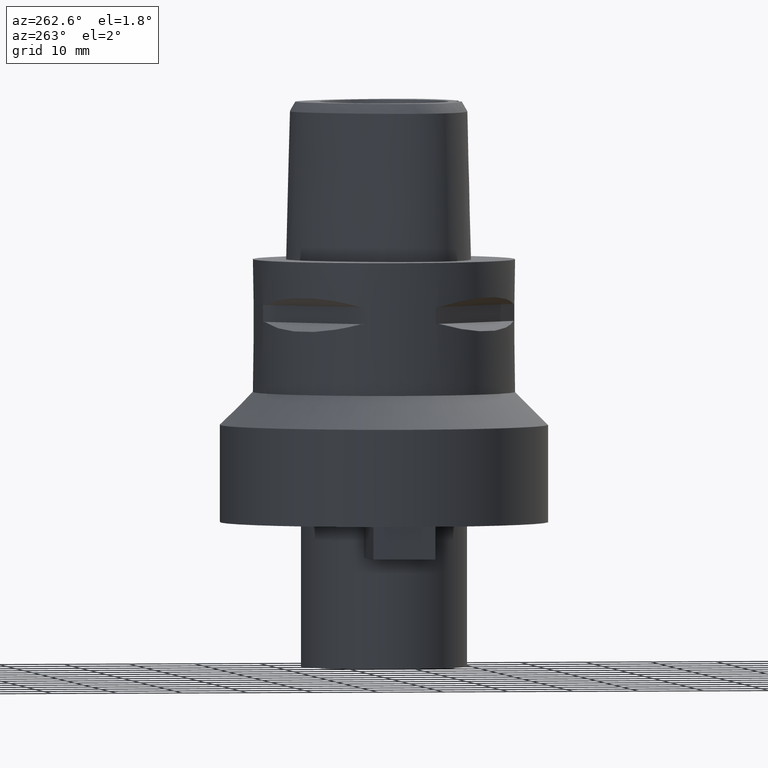
[diagram: clean part render]
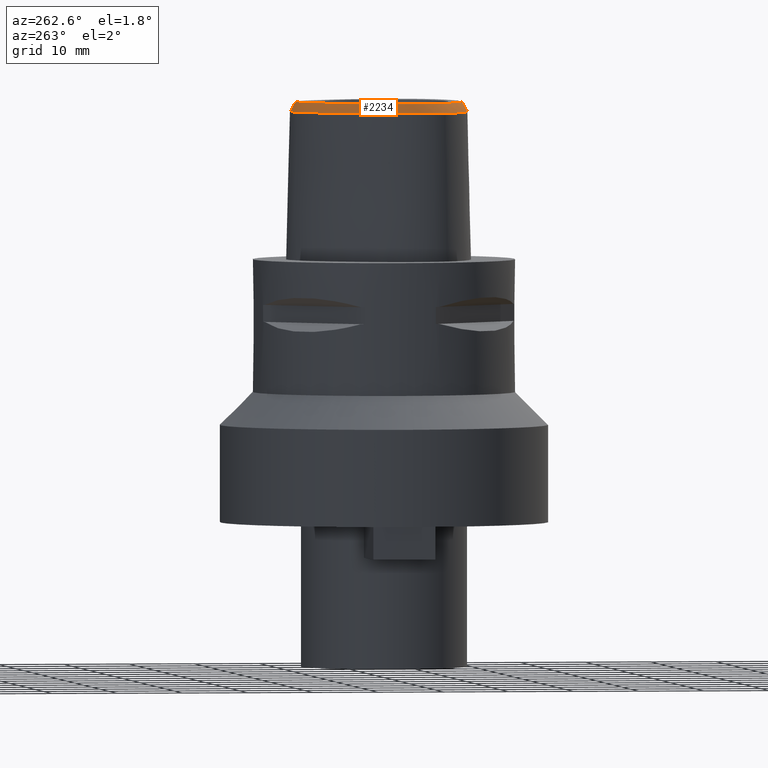
[diagram: same view with one face highlighted and labeled with its STEP entity id]
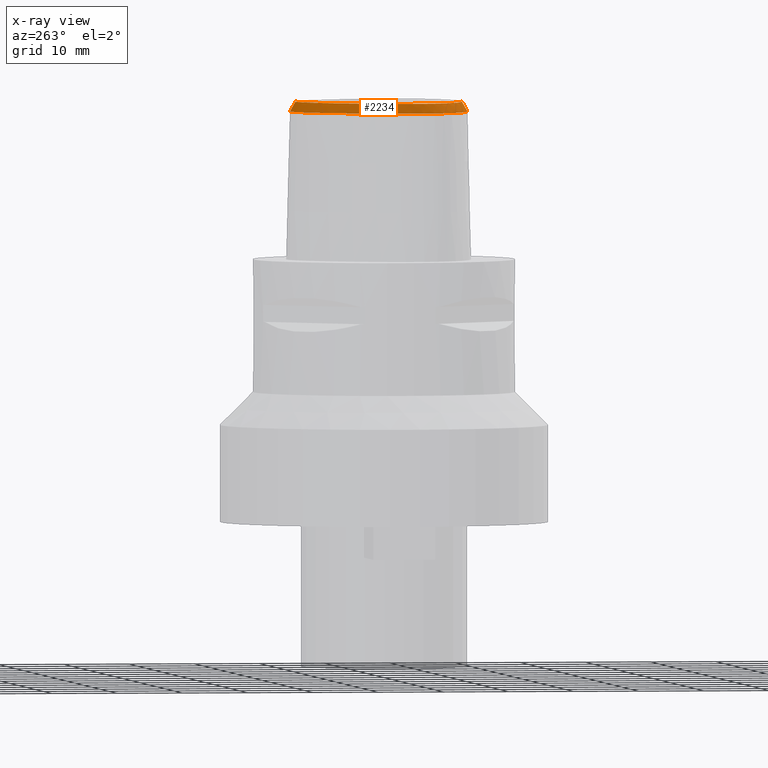
[diagram: x-ray of the same camera — body ghosted, the highlighted face saturated]
A machine part, auxiliary view. The second image highlights one B-rep face of the part: STEP entity #2234.
The next image is the same camera in x-ray: the body ghosted, the highlighted face saturated — about 0% of this face is hidden behind the body in this view.
In plain terms, the highlighted face is a freeform B-spline surface patch.
Its self-contained STEP definition (entity closure, byte-faithful):
#26=CARTESIAN_POINT('',(-1.908902231479E0,-1.168567671432E1,2.4E1));
#27=CARTESIAN_POINT('',(-2.481724898554E0,-1.163401497850E1,2.4E1));
#28=CARTESIAN_POINT('',(-3.563361432309E0,-1.148973373339E1,2.4E1));
#29=CARTESIAN_POINT('',(-5.024706861232E0,-1.117278693636E1,2.4E1));
#30=CARTESIAN_POINT('',(-6.243272168656E0,-1.080728708031E1,2.4E1));
#31=CARTESIAN_POINT('',(-7.319395105249E0,-1.039526650595E1,2.4E1));
#32=CARTESIAN_POINT('',(-8.285078050921E0,-9.935318322499E0,2.4E1));
#33=CARTESIAN_POINT('',(-9.161328010911E0,-9.423035478429E0,2.4E1));
#34=CARTESIAN_POINT('',(-9.937552062665E0,-8.865463343726E0,2.4E1));
#35=CARTESIAN_POINT('',(-1.058501989729E1,-8.294060897819E0,2.4E1));
#36=CARTESIAN_POINT('',(-1.111598541466E1,-7.719071980642E0,2.4E1));
#37=CARTESIAN_POINT('',(-1.155013481688E1,-7.136626898014E0,2.4E1));
#38=CARTESIAN_POINT('',(-1.190104948876E1,-6.541657191145E0,2.4E1));
#39=CARTESIAN_POINT('',(-1.219579276287E1,-5.890910487840E0,2.4E1));
#40=CARTESIAN_POINT('',(-1.243897749032E1,-5.156619030808E0,2.4E1));
#41=CARTESIAN_POINT('',(-1.262095507866E1,-4.332997119745E0,2.4E1));
#42=CARTESIAN_POINT('',(-1.273103982553E1,-3.394262357398E0,2.4E1));
#43=CARTESIAN_POINT('',(-1.275232195280E1,-2.390471409660E0,2.4E1));
#44=CARTESIAN_POINT('',(-1.268376726551E1,-1.333218450825E0,2.4E1));
#45=CARTESIAN_POINT('',(-1.252102351046E1,-2.124122209759E-1,2.4E1));
#46=CARTESIAN_POINT('',(-1.224891324576E1,1.008416730884E0,2.4E1));
#47=CARTESIAN_POINT('',(-1.182601865500E1,2.396995030019E0,2.4E1));
#48=CARTESIAN_POINT('',(-1.122010556652E1,3.924745049124E0,2.4E1));
#49=CARTESIAN_POINT('',(-1.046210194415E1,5.455501514842E0,2.4E1));
#50=CARTESIAN_POINT('',(-9.578413697509E0,6.929632194631E0,2.4E1));
#51=CARTESIAN_POINT('',(-8.591757783297E0,8.308502818076E0,2.4E1));
#52=CARTESIAN_POINT('',(-7.573891749405E0,9.507650002554E0,2.4E1));
#53=CARTESIAN_POINT('',(-6.617393513022E0,1.046802998448E1,2.4E1));
#54=CARTESIAN_POINT('',(-5.719285637390E0,1.124478964380E1,2.4E1));
#55=CARTESIAN_POINT('',(-4.831714846112E0,1.190101360841E1,2.4E1));
#56=CARTESIAN_POINT('',(-3.946866797568E0,1.244872863983E1,2.4E1));
#57=CARTESIAN_POINT('',(-3.069843000196E0,1.288827131871E1,2.4E1));
#58=CARTESIAN_POINT('',(-2.227204958453E0,1.321193373268E1,2.4E1));
#59=CARTESIAN_POINT('',(-1.444584259257E0,1.342446973037E1,2.4E1));
#60=CARTESIAN_POINT('',(-7.087016664697E-1,1.354503063331E1,2.4E1));
#61=CARTESIAN_POINT('',(-2.328645429444E-1,1.357127880781E1,2.4E1));
#62=CARTESIAN_POINT('',(-1.335434154492E-10,1.357127880781E1,2.4E1));
#175=CARTESIAN_POINT('',(-1.908902231479E0,-1.168567671432E1,2.4E1));
#176=CARTESIAN_POINT('',(-1.997651483425E0,-1.175887895280E1,2.385563464270E1));
#177=CARTESIAN_POINT('',(-2.164153643173E0,-1.191348214528E1,2.355238070448E1));
#178=CARTESIAN_POINT('',(-2.380673178971E0,-1.216434310603E1,2.306621151731E1));
#179=CARTESIAN_POINT('',(-2.509408871138E0,-1.235195819386E1,2.270732106211E1));
#180=CARTESIAN_POINT('',(-2.568703252653E0,-1.245023756080E1,2.252071717950E1));
#185=CARTESIAN_POINT('',(-2.568703252653E0,-1.245023756080E1,2.252071717950E1));
#186=CARTESIAN_POINT('',(-3.140767362064E0,-1.238285874835E1,2.252069809700E1));
#187=CARTESIAN_POINT('',(-4.231432350381E0,-1.220749118666E1,2.252075047915E1));
#188=CARTESIAN_POINT('',(-5.680401477738E0,-1.185356079189E1,2.252068346086E1));
#189=CARTESIAN_POINT('',(-6.912706729050E0,-1.145002392145E1,2.252072846215E1));
#190=CARTESIAN_POINT('',(-8.014444282615E0,-1.099423288898E1,2.252071904811E1));
#191=CARTESIAN_POINT('',(-9.018405144946E0,-1.048012557420E1,2.252071402547E1));
#192=CARTESIAN_POINT('',(-9.929151451424E0,-9.906337477002E0,2.252072194140E1));
#193=CARTESIAN_POINT('',(-1.070776393210E1,-9.304676928897E0,2.252071466012E1));
#194=CARTESIAN_POINT('',(-1.135814414685E1,-8.692024244349E0,2.252072649171E1));
#195=CARTESIAN_POINT('',(-1.190098337376E1,-8.066523440665E0,2.252071260322E1));
#196=CARTESIAN_POINT('',(-1.234667877880E1,-7.432105773747E0,2.252076625818E1));
#197=CARTESIAN_POINT('',(-1.271526241775E1,-6.769205394506E0,2.252072475515E1));
#198=CARTESIAN_POINT('',(-1.302516400355E1,-6.043193140644E0,2.252071273254E1));
#199=CARTESIAN_POINT('',(-1.327656964214E1,-5.234323751474E0,2.252071347282E1));
#200=CARTESIAN_POINT('',(-1.346054735624E1,-4.335879622322E0,2.252072965067E1));
#201=CARTESIAN_POINT('',(-1.356670738777E1,-3.325787118150E0,2.252071333962E1));
#202=CARTESIAN_POINT('',(-1.357833085045E1,-2.232102726738E0,2.252072310686E1));
#203=CARTESIAN_POINT('',(-1.349159664572E1,-1.088567970740E0,2.252070848754E1));
#204=CARTESIAN_POINT('',(-1.330380166341E1,1.120053897956E-1,2.252073059496E1));
#205=CARTESIAN_POINT('',(-1.300051046427E1,1.410194195177E0,2.252072244837E1));
#206=CARTESIAN_POINT('',(-1.252747872946E1,2.900839187196E0,2.252070273689E1));
#207=CARTESIAN_POINT('',(-1.187832536623E1,4.481041021115E0,2.252069888392E1));
#208=CARTESIAN_POINT('',(-1.108347172856E1,6.045259994258E0,2.252072375172E1));
#209=CARTESIAN_POINT('',(-1.016193108695E1,7.549741679123E0,2.252068647014E1));
#210=CARTESIAN_POINT('',(-9.144943296323E0,8.946575283709E0,2.252071673861E1));
#211=CARTESIAN_POINT('',(-8.081042420031E0,1.018103728568E1,2.252072151124E1));
#212=CARTESIAN_POINT('',(-7.077911845281E0,1.117209775440E1,2.252070220860E1));
#213=CARTESIAN_POINT('',(-6.128371495495E0,1.197957250549E1,2.252072281274E1));
#214=CARTESIAN_POINT('',(-5.175347433608E0,1.267004432638E1,2.252072151735E1));
#215=CARTESIAN_POINT('',(-4.221915802100E0,1.324476235602E1,2.252072283038E1));
#216=CARTESIAN_POINT('',(-3.286911294798E0,1.369826143421E1,2.252073193036E1));
#217=CARTESIAN_POINT('',(-2.395439664103E0,1.402886899447E1,2.252069729837E1));
#218=CARTESIAN_POINT('',(-1.555977357370E0,1.424902387042E1,2.252079950042E1));
#219=CARTESIAN_POINT('',(-7.552256815651E-1,1.437387551916E1,2.252057493327E1));
#220=CARTESIAN_POINT('',(-2.533298763088E-1,1.440001989798E1,2.252071729253E1));
#221=CARTESIAN_POINT('',(-6.596689358390E-11,1.440001989798E1,
2.252071729253E1));
#226=DIRECTION('',(-3.985384057881E-11,-4.887572544033E-1,8.724198222577E-1));
#227=VECTOR('',#226,1.695608776565E0);
#228=CARTESIAN_POINT('',(-6.596689358390E-11,1.440001989798E1,
2.252071729253E1));
#229=LINE('',#228,#227);
#233=CARTESIAN_POINT('',(-2.568703252653E0,-1.245023756080E1,2.252071717950E1));
#1583=CARTESIAN_POINT('',(-1.908902231482E0,-1.168567671432E1,2.4E1));
#1585=VERTEX_POINT('',#1583);
#1586=VERTEX_POINT('',#62);
#1595=VERTEX_POINT('',#233);
#1596=CARTESIAN_POINT('',(-6.596689358390E-11,1.440001989798E1,
2.252071729253E1));
#1597=VERTEX_POINT('',#1596);
#2022=CARTESIAN_POINT('',(3.581078725702E-1,1.349647680417E1,2.411666870662E1));
#2023=CARTESIAN_POINT('',(3.757309830335E-1,1.381580947910E1,2.354577192886E1));
#2024=CARTESIAN_POINT('',(3.933540934968E-1,1.413514215404E1,2.297487515110E1));
#2025=CARTESIAN_POINT('',(4.109772039601E-1,1.445447482897E1,2.240397837333E1));
#2026=CARTESIAN_POINT('',(2.357557754970E-1,1.350271631214E1,2.411666868116E1));
#2027=CARTESIAN_POINT('',(2.475572863642E-1,1.382238485502E1,2.354577202799E1));
#2028=CARTESIAN_POINT('',(2.593587972315E-1,1.414205339790E1,2.297487537482E1));
#2029=CARTESIAN_POINT('',(2.711603080987E-1,1.446172194078E1,2.240397872164E1));
#2030=CARTESIAN_POINT('',(-4.779440032513E-2,1.351037520856E1,
2.411666866182E1));
#2031=CARTESIAN_POINT('',(-5.008764217168E-2,1.383044048653E1,
2.354577210326E1));
#2032=CARTESIAN_POINT('',(-5.238088401823E-2,1.415050576449E1,
2.297487554470E1));
#2033=CARTESIAN_POINT('',(-5.467412586479E-2,1.447057104245E1,
2.240397898614E1));
#2034=CARTESIAN_POINT('',(-4.849559623984E-1,1.349350078594E1,
2.411666870442E1));
#2035=CARTESIAN_POINT('',(-5.097271500992E-1,1.381269195946E1,
2.354577193741E1));
#2036=CARTESIAN_POINT('',(-5.344983378001E-1,1.413188313297E1,
2.297487517040E1));
#2037=CARTESIAN_POINT('',(-5.592695255009E-1,1.445107430649E1,
2.240397840339E1));
#2038=CARTESIAN_POINT('',(-9.946093211746E-1,1.343499264982E1,
2.411666869477E1));
#2039=CARTESIAN_POINT('',(-1.043618904220E0,1.375135820478E1,2.354577197501E1));
#2040=CARTESIAN_POINT('',(-1.092628487266E0,1.406772375974E1,2.297487525525E1));
#2041=CARTESIAN_POINT('',(-1.141638070312E0,1.438408931470E1,2.240397853549E1));
#2042=CARTESIAN_POINT('',(-1.525334849366E0,1.333273741810E1,2.411666865725E1));
#2043=CARTESIAN_POINT('',(-1.597921691645E0,1.364452890841E1,2.354577212105E1));
#2044=CARTESIAN_POINT('',(-1.670508533923E0,1.395632039871E1,2.297487558485E1));
#2045=CARTESIAN_POINT('',(-1.743095376201E0,1.426811188902E1,2.240397904865E1));
#2046=CARTESIAN_POINT('',(-2.082859980546E0,1.318182135060E1,2.411666872787E1));
#2047=CARTESIAN_POINT('',(-2.178178529694E0,1.348741845194E1,2.354577184610E1));
#2048=CARTESIAN_POINT('',(-2.273497078842E0,1.379301555328E1,2.297487496433E1));
#2049=CARTESIAN_POINT('',(-2.368815627989E0,1.409861265462E1,2.240397808256E1));
#2050=CARTESIAN_POINT('',(-2.667875619337E0,1.297673699375E1,2.411666873765E1));
#2051=CARTESIAN_POINT('',(-2.784952726363E0,1.327466362704E1,2.354577180803E1));
#2052=CARTESIAN_POINT('',(-2.902029833388E0,1.357259026033E1,2.297487487841E1));
#2053=CARTESIAN_POINT('',(-3.019106940414E0,1.387051689362E1,2.240397794878E1));
#2054=CARTESIAN_POINT('',(-3.283863731176E0,1.271023960510E1,2.411666840597E1));
#2055=CARTESIAN_POINT('',(-3.421596290684E0,1.299918326477E1,2.354577309934E1));
#2056=CARTESIAN_POINT('',(-3.559328850193E0,1.328812692443E1,2.297487779270E1));
#2057=CARTESIAN_POINT('',(-3.697061409701E0,1.357707058410E1,2.240398248606E1));
#2058=CARTESIAN_POINT('',(-3.933077906095E0,1.237409782728E1,2.411666820474E1));
#2059=CARTESIAN_POINT('',(-4.090278104358E0,1.265291391265E1,2.354577388280E1));
#2060=CARTESIAN_POINT('',(-4.247478302621E0,1.293172999802E1,2.297487956086E1));
#2061=CARTESIAN_POINT('',(-4.404678500884E0,1.321054608339E1,2.240398523893E1));
#2062=CARTESIAN_POINT('',(-4.613637101655E0,1.196099420727E1,2.411666835024E1));
#2063=CARTESIAN_POINT('',(-4.789098446769E0,1.222868016422E1,2.354577331635E1));
#2064=CARTESIAN_POINT('',(-4.964559791882E0,1.249636612116E1,2.297487828245E1));
#2065=CARTESIAN_POINT('',(-5.140021136995E0,1.276405207811E1,2.240398324856E1));
#2066=CARTESIAN_POINT('',(-5.321303385500E0,1.146472655747E1,2.411666873177E1));
#2067=CARTESIAN_POINT('',(-5.513812114048E0,1.172041345222E1,2.354577183093E1));
#2068=CARTESIAN_POINT('',(-5.706320842595E0,1.197610034697E1,2.297487493009E1));
#2069=CARTESIAN_POINT('',(-5.898829571143E0,1.223178724172E1,2.240397802926E1));
#2070=CARTESIAN_POINT('',(-6.052325782228E0,1.087836155965E1,2.411666863713E1));
#2071=CARTESIAN_POINT('',(-6.260689431585E0,1.112128767721E1,2.354577219937E1));
#2072=CARTESIAN_POINT('',(-6.469053080941E0,1.136421379477E1,2.297487576161E1));
#2073=CARTESIAN_POINT('',(-6.677416730298E0,1.160713991234E1,2.240397932385E1));
#2074=CARTESIAN_POINT('',(-6.801921429846E0,1.019540233830E1,2.411666847636E1));
#2075=CARTESIAN_POINT('',(-7.024928269475E0,1.042494541494E1,2.354577282531E1));
#2076=CARTESIAN_POINT('',(-7.247935109104E0,1.065448849158E1,2.297487717426E1));
#2077=CARTESIAN_POINT('',(-7.470941948733E0,1.088403156822E1,2.240398152322E1));
#2078=CARTESIAN_POINT('',(-7.557966931656E0,9.416232968493E0,2.411666861162E1));
#2079=CARTESIAN_POINT('',(-7.794480149417E0,9.631823053226E0,2.354577229866E1));
#2080=CARTESIAN_POINT('',(-8.030993367178E0,9.847413137959E0,2.297487598570E1));
#2081=CARTESIAN_POINT('',(-8.267506584939E0,1.006300322269E1,2.240397967274E1));
#2082=CARTESIAN_POINT('',(-8.306355620398E0,8.545470547250E0,2.411666871118E1));
#2083=CARTESIAN_POINT('',(-8.555312624813E0,8.746553202737E0,2.354577191106E1));
#2084=CARTESIAN_POINT('',(-8.804269629229E0,8.947635858225E0,2.297487511094E1));
#2085=CARTESIAN_POINT('',(-9.053226633645E0,9.148718513713E0,2.240397831082E1));
#2086=CARTESIAN_POINT('',(-9.032863043621E0,7.590746009973E0,2.411666858330E1));
#2087=CARTESIAN_POINT('',(-9.293208657106E0,7.776839625658E0,2.354577240898E1));
#2088=CARTESIAN_POINT('',(-9.553554270592E0,7.962933241342E0,2.297487623466E1));
#2089=CARTESIAN_POINT('',(-9.813899884077E0,8.149026857027E0,2.240398006034E1));
#2090=CARTESIAN_POINT('',(-9.720916130270E0,6.566829519301E0,2.411666864035E1));
#2091=CARTESIAN_POINT('',(-9.991662816539E0,6.737434432088E0,2.354577218687E1));
#2092=CARTESIAN_POINT('',(-1.026240950281E1,6.908039344875E0,2.297487573340E1));
#2093=CARTESIAN_POINT('',(-1.053315618908E1,7.078644257663E0,2.240397927992E1));
#2094=CARTESIAN_POINT('',(-1.035393613330E1,5.494279334280E0,2.411666868877E1));
#2095=CARTESIAN_POINT('',(-1.063415838249E1,5.648827606883E0,2.354577199835E1));
#2096=CARTESIAN_POINT('',(-1.091438063168E1,5.803375879487E0,2.297487530793E1));
#2097=CARTESIAN_POINT('',(-1.119460288087E1,5.957924152090E0,2.240397861751E1));
#2098=CARTESIAN_POINT('',(-1.092049834829E1,4.391850546090E0,2.411666859997E1));
#2099=CARTESIAN_POINT('',(-1.120924013031E1,4.529829823997E0,2.354577234407E1));
#2100=CARTESIAN_POINT('',(-1.149798191233E1,4.667809101904E0,2.297487608816E1));
#2101=CARTESIAN_POINT('',(-1.178672369436E1,4.805788379810E0,2.240397983226E1));
#2102=CARTESIAN_POINT('',(-1.141086815551E1,3.282075242943E0,2.411666869131E1));
#2103=CARTESIAN_POINT('',(-1.170720192989E1,3.402901843428E0,2.354577198843E1));
#2104=CARTESIAN_POINT('',(-1.200353570428E1,3.523728443913E0,2.297487528555E1));
#2105=CARTESIAN_POINT('',(-1.229986947866E1,3.644555044398E0,2.240397858267E1));
#2106=CARTESIAN_POINT('',(-1.181821975903E1,2.189368678230E0,2.411666868409E1));
#2107=CARTESIAN_POINT('',(-1.212121246929E1,2.292381453544E0,2.354577201653E1));
#2108=CARTESIAN_POINT('',(-1.242420517956E1,2.395394228858E0,2.297487534897E1));
#2109=CARTESIAN_POINT('',(-1.272719788983E1,2.498407004172E0,2.240397868141E1));
#2110=CARTESIAN_POINT('',(-1.214196853916E1,1.130702738401E0,2.411666839813E1));
#2111=CARTESIAN_POINT('',(-1.245062692651E1,1.215263228482E0,2.354577312988E1));
#2112=CARTESIAN_POINT('',(-1.275928531387E1,1.299823718564E0,2.297487786163E1));
#2113=CARTESIAN_POINT('',(-1.306794370123E1,1.384384208645E0,2.240398259338E1));
#2114=CARTESIAN_POINT('',(-1.238452275884E1,1.205454593437E-1,
2.411666842173E1));
#2115=CARTESIAN_POINT('',(-1.269780682412E1,1.859611430030E-1,
2.354577303800E1));
#2116=CARTESIAN_POINT('',(-1.301109088941E1,2.513768266624E-1,
2.297487765426E1));
#2117=CARTESIAN_POINT('',(-1.332437495469E1,3.167925103218E-1,
2.240398227052E1));
#2118=CARTESIAN_POINT('',(-1.255051334329E1,-8.279871015946E-1,
2.411666869349E1));
#2119=CARTESIAN_POINT('',(-1.286730461232E1,-7.824209274586E-1,
2.354577197994E1));
#2120=CARTESIAN_POINT('',(-1.318409588135E1,-7.368547533226E-1,
2.297487526638E1));
#2121=CARTESIAN_POINT('',(-1.350088715038E1,-6.912885791866E-1,
2.240397855283E1));
#2122=CARTESIAN_POINT('',(-1.264741750878E1,-1.710924336645E0,
2.411666869794E1));
#2123=CARTESIAN_POINT('',(-1.296650247253E1,-1.685924153860E0,
2.354577196262E1));
#2124=CARTESIAN_POINT('',(-1.328558743629E1,-1.660923971075E0,
2.297487522730E1));
#2125=CARTESIAN_POINT('',(-1.360467240004E1,-1.635923788290E0,
2.240397849199E1));
#2126=CARTESIAN_POINT('',(-1.268321010689E1,-2.527439109727E0,
2.411666868853E1));
#2127=CARTESIAN_POINT('',(-1.300326240066E1,-2.523627812372E0,
2.354577199928E1));
#2128=CARTESIAN_POINT('',(-1.332331469442E1,-2.519816515018E0,
2.297487531002E1));
#2129=CARTESIAN_POINT('',(-1.364336698819E1,-2.516005217664E0,
2.240397862077E1));
#2130=CARTESIAN_POINT('',(-1.266561177742E1,-3.278041877418E0,
2.411666861212E1));
#2131=CARTESIAN_POINT('',(-1.298519453400E1,-3.296015148607E0,
2.354577229675E1));
#2132=CARTESIAN_POINT('',(-1.330477729057E1,-3.313988419796E0,
2.297487598137E1));
#2133=CARTESIAN_POINT('',(-1.362436004714E1,-3.331961690984E0,
2.240397966599E1));
#2134=CARTESIAN_POINT('',(-1.260189982064E1,-3.965839882758E0,
2.411666865877E1));
#2135=CARTESIAN_POINT('',(-1.291946443511E1,-4.006053858631E0,
2.354577211515E1));
#2136=CARTESIAN_POINT('',(-1.323702904958E1,-4.046267834505E0,
2.297487557153E1));
#2137=CARTESIAN_POINT('',(-1.355459366405E1,-4.086481810378E0,
2.240397902791E1));
#2138=CARTESIAN_POINT('',(-1.249859018239E1,-4.593989984533E0,
2.411666869994E1));
#2139=CARTESIAN_POINT('',(-1.281248007625E1,-4.656806001037E0,
2.354577195483E1));
#2140=CARTESIAN_POINT('',(-1.312636997011E1,-4.719622017540E0,
2.297487520971E1));
#2141=CARTESIAN_POINT('',(-1.344025986396E1,-4.782438034043E0,
2.240397846459E1));
#2142=CARTESIAN_POINT('',(-1.236088551288E1,-5.168458897594E0,
2.411666869126E1));
#2143=CARTESIAN_POINT('',(-1.266935866556E1,-5.254043273255E0,
2.354577198867E1));
#2144=CARTESIAN_POINT('',(-1.297783181825E1,-5.339627648916E0,
2.297487528608E1));
#2145=CARTESIAN_POINT('',(-1.328630497093E1,-5.425212024577E0,
2.240397858349E1));
#2146=CARTESIAN_POINT('',(-1.219312956934E1,-5.693990201811E0,
2.411666865392E1));
#2147=CARTESIAN_POINT('',(-1.249437426076E1,-5.802337452111E0,
2.354577213402E1));
#2148=CARTESIAN_POINT('',(-1.279561895218E1,-5.910684702410E0,
2.297487561413E1));
#2149=CARTESIAN_POINT('',(-1.309686364360E1,-6.019031952710E0,
2.240397909423E1));
#2150=CARTESIAN_POINT('',(-1.199789210422E1,-6.176946968106E0,
2.411666867856E1));
#2151=CARTESIAN_POINT('',(-1.229006833483E1,-6.307813215185E0,
2.354577203810E1));
#2152=CARTESIAN_POINT('',(-1.258224456543E1,-6.438679462264E0,
2.297487539765E1));
#2153=CARTESIAN_POINT('',(-1.287442079604E1,-6.569545709343E0,
2.240397875720E1));
#2154=CARTESIAN_POINT('',(-1.177845854927E1,-6.619447054760E0,
2.411666867726E1));
#2155=CARTESIAN_POINT('',(-1.205972140663E1,-6.772389209585E0,
2.354577204318E1));
#2156=CARTESIAN_POINT('',(-1.234098426399E1,-6.925331364410E0,
2.297487540911E1));
#2157=CARTESIAN_POINT('',(-1.262224712136E1,-7.078273519235E0,
2.240397877503E1));
#2158=CARTESIAN_POINT('',(-1.153239467327E1,-7.032857250184E0,
2.411666871252E1));
#2159=CARTESIAN_POINT('',(-1.180089770957E1,-7.207226539957E0,
2.354577190585E1));
#2160=CARTESIAN_POINT('',(-1.206940074587E1,-7.381595829729E0,
2.297487509917E1));
#2161=CARTESIAN_POINT('',(-1.233790378217E1,-7.555965119502E0,
2.240397829249E1));
#2162=CARTESIAN_POINT('',(-1.124267051748E1,-7.444564654003E0,
2.411666864405E1));
#2163=CARTESIAN_POINT('',(-1.149705249072E1,-7.638936733991E0,
2.354577217246E1));
#2164=CARTESIAN_POINT('',(-1.175143446397E1,-7.833308813979E0,
2.297487570087E1));
#2165=CARTESIAN_POINT('',(-1.200581643721E1,-8.027680893968E0,
2.240397922929E1));
#2166=CARTESIAN_POINT('',(-1.090522854619E1,-7.854035465490E0,
2.411666867699E1));
#2167=CARTESIAN_POINT('',(-1.114422230334E1,-8.067031600114E0,
2.354577204420E1));
#2168=CARTESIAN_POINT('',(-1.138321606050E1,-8.280027734737E0,
2.297487541141E1));
#2169=CARTESIAN_POINT('',(-1.162220981765E1,-8.493023869361E0,
2.240397877863E1));
#2170=CARTESIAN_POINT('',(-1.051482116232E1,-8.261613619007E0,
2.411666869136E1));
#2171=CARTESIAN_POINT('',(-1.073737933116E1,-8.491712518724E0,
2.354577198823E1));
#2172=CARTESIAN_POINT('',(-1.09599375E1,-8.721811418442E0,2.297487528509E1));
#2173=CARTESIAN_POINT('',(-1.118249566884E1,-8.951910318159E0,
2.240397858196E1));
#2174=CARTESIAN_POINT('',(-1.006491692652E1,-8.667221484706E0,
2.411666870009E1));
#2175=CARTESIAN_POINT('',(-1.027019353073E1,-8.912846164435E0,
2.354577195426E1));
#2176=CARTESIAN_POINT('',(-1.047547013493E1,-9.158470844165E0,
2.297487520842E1));
#2177=CARTESIAN_POINT('',(-1.068074673914E1,-9.404095523895E0,
2.240397846259E1));
#2178=CARTESIAN_POINT('',(-9.548721421168E0,-9.069461161125E0,
2.411666862526E1));
#2179=CARTESIAN_POINT('',(-9.736060037241E0,-9.329010182020E0,
2.354577224557E1));
#2180=CARTESIAN_POINT('',(-9.923398653313E0,-9.588559202915E0,
2.297487586588E1));
#2181=CARTESIAN_POINT('',(-1.011073726939E1,-9.848108223810E0,
2.240397948619E1));
#2182=CARTESIAN_POINT('',(-8.958838477695E0,-9.466067970709E0,
2.411666864087E1));
#2183=CARTESIAN_POINT('',(-9.127786312044E0,-9.737931921905E0,
2.354577218480E1));
#2184=CARTESIAN_POINT('',(-9.296734146392E0,-1.000979587310E1,
2.297487572872E1));
#2185=CARTESIAN_POINT('',(-9.465681980741E0,-1.028165982430E1,
2.240397927264E1));
#2186=CARTESIAN_POINT('',(-8.289311279845E0,-9.852589481368E0,
2.411666868578E1));
#2187=CARTESIAN_POINT('',(-8.439531461296E0,-1.013521835723E1,2.354577201E1));
#2188=CARTESIAN_POINT('',(-8.589751642748E0,-1.041784723309E1,
2.297487533423E1));
#2189=CARTESIAN_POINT('',(-8.739971824199E0,-1.070047610896E1,
2.240397865846E1));
#2190=CARTESIAN_POINT('',(-7.534278017105E0,-1.022380576361E1,
2.411666872195E1));
#2191=CARTESIAN_POINT('',(-7.665626594586E0,-1.051567079320E1,
2.354577186916E1));
#2192=CARTESIAN_POINT('',(-7.796975172067E0,-1.080753582279E1,
2.297487501637E1));
#2193=CARTESIAN_POINT('',(-7.928323749549E0,-1.109940085239E1,
2.240397816358E1));
#2194=CARTESIAN_POINT('',(-6.689716503545E0,-1.057292348423E1,
2.411666860450E1));
#2195=CARTESIAN_POINT('',(-6.802084108352E0,-1.087259700410E1,
2.354577232644E1));
#2196=CARTESIAN_POINT('',(-6.914451713159E0,-1.117227052397E1,
2.297487604837E1));
#2197=CARTESIAN_POINT('',(-7.026819317966E0,-1.147194404385E1,
2.240397977031E1));
#2198=CARTESIAN_POINT('',(-5.753043255108E0,-1.089228935700E1,
2.411666838018E1));
#2199=CARTESIAN_POINT('',(-5.846485481696E0,-1.119838161463E1,
2.354577319976E1));
#2200=CARTESIAN_POINT('',(-5.939927708283E0,-1.150447387227E1,
2.297487801933E1));
#2201=CARTESIAN_POINT('',(-6.033369934871E0,-1.181056612990E1,
2.240398283891E1));
#2202=CARTESIAN_POINT('',(-4.726953566323E0,-1.117254146509E1,
2.411666848604E1));
#2203=CARTESIAN_POINT('',(-4.801529723991E0,-1.148376053282E1,
2.354577278763E1));
#2204=CARTESIAN_POINT('',(-4.876105881658E0,-1.179497960055E1,
2.297487708923E1));
#2205=CARTESIAN_POINT('',(-4.950682039325E0,-1.210619866829E1,
2.240398139082E1));
#2206=CARTESIAN_POINT('',(-3.622684613284E0,-1.140323863310E1,
2.411666874336E1));
#2207=CARTESIAN_POINT('',(-3.678463603469E0,-1.171836354652E1,
2.354577178582E1));
#2208=CARTESIAN_POINT('',(-3.734242593655E0,-1.203348845994E1,
2.297487482828E1));
#2209=CARTESIAN_POINT('',(-3.790021583840E0,-1.234861337335E1,
2.240397787074E1));
#2210=CARTESIAN_POINT('',(-2.665731842110E0,-1.154408424449E1,
2.411666864743E1));
#2211=CARTESIAN_POINT('',(-2.706230016769E0,-1.186144578618E1,
2.354577215926E1));
#2212=CARTESIAN_POINT('',(-2.746728191429E0,-1.217880732786E1,
2.297487567109E1));
#2213=CARTESIAN_POINT('',(-2.787226366088E0,-1.249616886955E1,
2.240397918293E1));
#2214=CARTESIAN_POINT('',(-1.958877183805E0,-1.161720483839E1,
2.411666861924E1));
#2215=CARTESIAN_POINT('',(-1.988448130055E0,-1.193569599945E1,
2.354577226902E1));
#2216=CARTESIAN_POINT('',(-2.018019076306E0,-1.225418716050E1,
2.297487591881E1));
#2217=CARTESIAN_POINT('',(-2.047590022557E0,-1.257267832156E1,
2.240397956860E1));
#2218=CARTESIAN_POINT('',(-1.650221997024E0,-1.164222290973E1,
2.411666861757E1));
#2219=CARTESIAN_POINT('',(-1.675082648392E0,-1.196109550441E1,
2.354577227553E1));
#2220=CARTESIAN_POINT('',(-1.699943299761E0,-1.227996809910E1,
2.297487593349E1));
#2221=CARTESIAN_POINT('',(-1.724803951129E0,-1.259884069379E1,
2.240397959146E1));
#2222=CARTESIAN_POINT('',(-1.523141434630E0,-1.165135967670E1,
2.411666861880E1));
#2223=CARTESIAN_POINT('',(-1.546070816434E0,-1.197037106109E1,
2.354577227074E1));
#2224=CARTESIAN_POINT('',(-1.569000198237E0,-1.228938244547E1,
2.297487592267E1));
#2225=CARTESIAN_POINT('',(-1.591929580041E0,-1.260839382986E1,
2.240397957461E1));
#2226=B_SPLINE_SURFACE_WITH_KNOTS('',3,3,((#2022,#2023,#2024,#2025),(#2026,
#2027,#2028,#2029),(#2030,#2031,#2032,#2033),(#2034,#2035,#2036,#2037),(#2038,
#2039,#2040,#2041),(#2042,#2043,#2044,#2045),(#2046,#2047,#2048,#2049),(#2050,
#2051,#2052,#2053),(#2054,#2055,#2056,#2057),(#2058,#2059,#2060,#2061),(#2062,
#2063,#2064,#2065),(#2066,#2067,#2068,#2069),(#2070,#2071,#2072,#2073),(#2074,
#2075,#2076,#2077),(#2078,#2079,#2080,#2081),(#2082,#2083,#2084,#2085),(#2086,
#2087,#2088,#2089),(#2090,#2091,#2092,#2093),(#2094,#2095,#2096,#2097),(#2098,
#2099,#2100,#2101),(#2102,#2103,#2104,#2105),(#2106,#2107,#2108,#2109),(#2110,
#2111,#2112,#2113),(#2114,#2115,#2116,#2117),(#2118,#2119,#2120,#2121),(#2122,
#2123,#2124,#2125),(#2126,#2127,#2128,#2129),(#2130,#2131,#2132,#2133),(#2134,
#2135,#2136,#2137),(#2138,#2139,#2140,#2141),(#2142,#2143,#2144,#2145),(#2146,
#2147,#2148,#2149),(#2150,#2151,#2152,#2153),(#2154,#2155,#2156,#2157),(#2158,
#2159,#2160,#2161),(#2162,#2163,#2164,#2165),(#2166,#2167,#2168,#2169),(#2170,
#2171,#2172,#2173),(#2174,#2175,#2176,#2177),(#2178,#2179,#2180,#2181),(#2182,
#2183,#2184,#2185),(#2186,#2187,#2188,#2189),(#2190,#2191,#2192,#2193),(#2194,
#2195,#2196,#2197),(#2198,#2199,#2200,#2201),(#2202,#2203,#2204,#2205),(#2206,
#2207,#2208,#2209),(#2210,#2211,#2212,#2213),(#2214,#2215,#2216,#2217),(#2218,
#2219,#2220,#2221),(#2222,#2223,#2224,#2225)),.UNSPECIFIED.,.F.,.F.,.F.,(4,1,1,
1,1,1,1,1,1,1,1,1,1,1,1,1,1,1,1,1,1,1,1,1,1,1,1,1,1,1,1,1,1,1,1,1,1,1,1,1,1,1,1,
1,1,1,1,1,4),(4,4),(-1.579924575334E-2,0.E0,2.200280252723E-2,4.400560505777E-2,
6.600840758830E-2,8.801121011884E-2,1.100140126494E-1,1.320168151799E-1,
1.540196177105E-1,1.760224202409E-1,1.980252227715E-1,2.200280253020E-1,
2.420308278326E-1,2.640336303632E-1,2.860364328937E-1,3.080392354242E-1,
3.300420379547E-1,3.520448404853E-1,3.740476430158E-1,3.960504455464E-1,
4.180532480768E-1,4.400560506074E-1,4.620588531379E-1,4.840616556685E-1,
5.060644581991E-1,5.280672607295E-1,5.500700632601E-1,5.720728657906E-1,
5.940756683212E-1,6.160784708517E-1,6.380812733822E-1,6.600840759127E-1,
6.820868784433E-1,7.040896809739E-1,7.260924835044E-1,7.480952860349E-1,
7.700980885654E-1,7.921008910960E-1,8.141036936265E-1,8.361064961571E-1,
8.581092986876E-1,8.801121012181E-1,9.021149037486E-1,9.241177062792E-1,
9.461205088098E-1,9.681233113403E-1,9.901261138708E-1,1.E0,1.006872802233E0),(
-5.660416859995E-2,1.056648636850E0),.UNSPECIFIED.);
#2227=ORIENTED_EDGE('',*,*,#1803,.T.);
#2229=ORIENTED_EDGE('',*,*,#2228,.T.);
#2230=ORIENTED_EDGE('',*,*,#2015,.T.);
#2231=ORIENTED_EDGE('',*,*,#1776,.F.);
#2232=EDGE_LOOP('',(#2227,#2229,#2230,#2231));
#2233=FACE_OUTER_BOUND('',#2232,.F.);
#63=B_SPLINE_CURVE_WITH_KNOTS('',3,(#26,#27,#28,#29,#30,#31,#32,#33,#34,#35,#36,
#37,#38,#39,#40,#41,#42,#43,#44,#45,#46,#47,#48,#49,#50,#51,#52,#53,#54,#55,#56,
#57,#58,#59,#60,#61,#62),.UNSPECIFIED.,.F.,.F.,(4,1,1,1,1,1,1,1,1,1,1,1,1,1,1,1,
1,1,1,1,1,1,1,1,1,1,1,1,1,1,1,1,1,1,4),(0.E0,2.941176470588E-2,
5.882352941176E-2,8.823529411765E-2,1.176470588235E-1,1.470588235294E-1,
1.764705882353E-1,2.058823529412E-1,2.352941176471E-1,2.647058823529E-1,
2.941176470588E-1,3.235294117647E-1,3.529411764706E-1,3.823529411765E-1,
4.117647058824E-1,4.411764705882E-1,4.705882352941E-1,5.E-1,5.294117647059E-1,
5.588235294118E-1,5.882352941176E-1,6.176470588235E-1,6.470588235294E-1,
6.764705882353E-1,7.058823529412E-1,7.352941176471E-1,7.647058823529E-1,
7.941176470588E-1,8.235294117647E-1,8.529411764706E-1,8.823529411765E-1,
9.117647058824E-1,9.411764705882E-1,9.705882352941E-1,1.E0),.UNSPECIFIED.);
#181=B_SPLINE_CURVE_WITH_KNOTS('',3,(#175,#176,#177,#178,#179,#180),
.UNSPECIFIED.,.F.,.F.,(4,1,1,4),(0.E0,3.333333333333E-1,6.666666666667E-1,1.E0),
.UNSPECIFIED.);
#222=B_SPLINE_CURVE_WITH_KNOTS('',3,(#185,#186,#187,#188,#189,#190,#191,#192,
#193,#194,#195,#196,#197,#198,#199,#200,#201,#202,#203,#204,#205,#206,#207,#208,
#209,#210,#211,#212,#213,#214,#215,#216,#217,#218,#219,#220,#221),.UNSPECIFIED.,
.F.,.F.,(4,1,1,1,1,1,1,1,1,1,1,1,1,1,1,1,1,1,1,1,1,1,1,1,1,1,1,1,1,1,1,1,1,1,4),
(0.E0,2.941176470588E-2,5.882352941176E-2,8.823529411765E-2,1.176470588235E-1,
1.470588235294E-1,1.764705882353E-1,2.058823529412E-1,2.352941176471E-1,
2.647058823529E-1,2.941176470588E-1,3.235294117647E-1,3.529411764706E-1,
3.823529411765E-1,4.117647058824E-1,4.411764705882E-1,4.705882352941E-1,5.E-1,
5.294117647059E-1,5.588235294118E-1,5.882352941176E-1,6.176470588235E-1,
6.470588235294E-1,6.764705882353E-1,7.058823529412E-1,7.352941176471E-1,
7.647058823529E-1,7.941176470588E-1,8.235294117647E-1,8.529411764706E-1,
8.823529411765E-1,9.117647058824E-1,9.411764705882E-1,9.705882352941E-1,1.E0),
.UNSPECIFIED.);
#1776=EDGE_CURVE('',#1585,#1586,#63,.T.);
#1803=EDGE_CURVE('',#1585,#1595,#181,.T.);
#2015=EDGE_CURVE('',#1597,#1586,#229,.T.);
#2228=EDGE_CURVE('',#1595,#1597,#222,.T.);
#2234=ADVANCED_FACE('',(#2233),#2226,.F.);